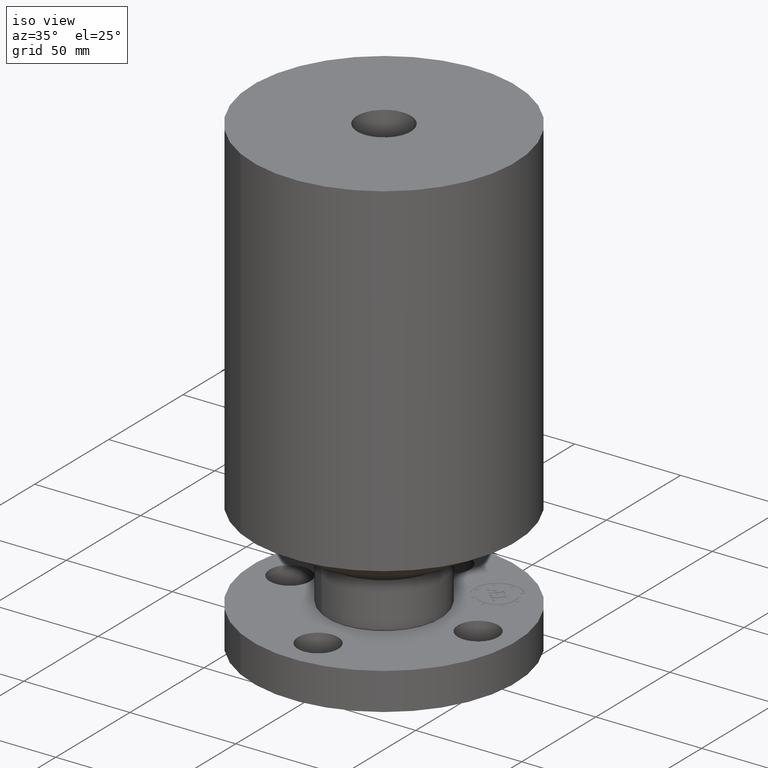
[diagram: clean part render]
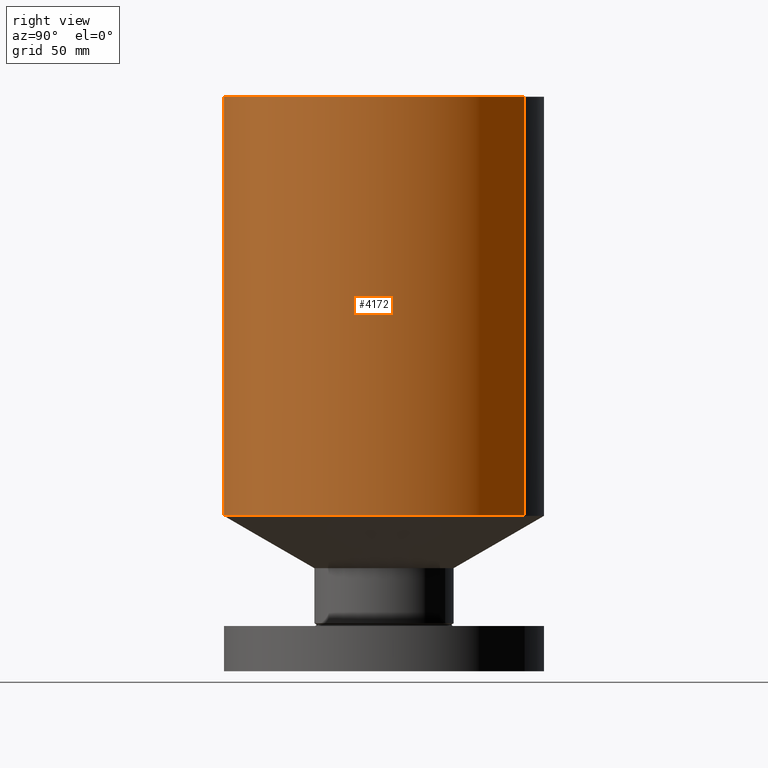
[diagram: tour spotlight — one face highlighted and labeled with its STEP entity id]
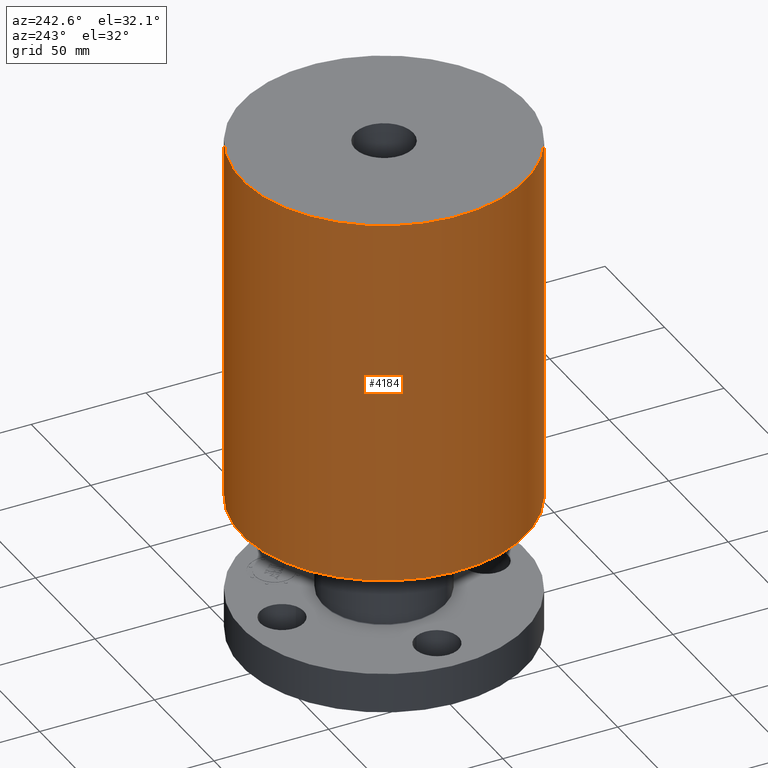
[diagram: tour spotlight — one face highlighted and labeled with its STEP entity id]
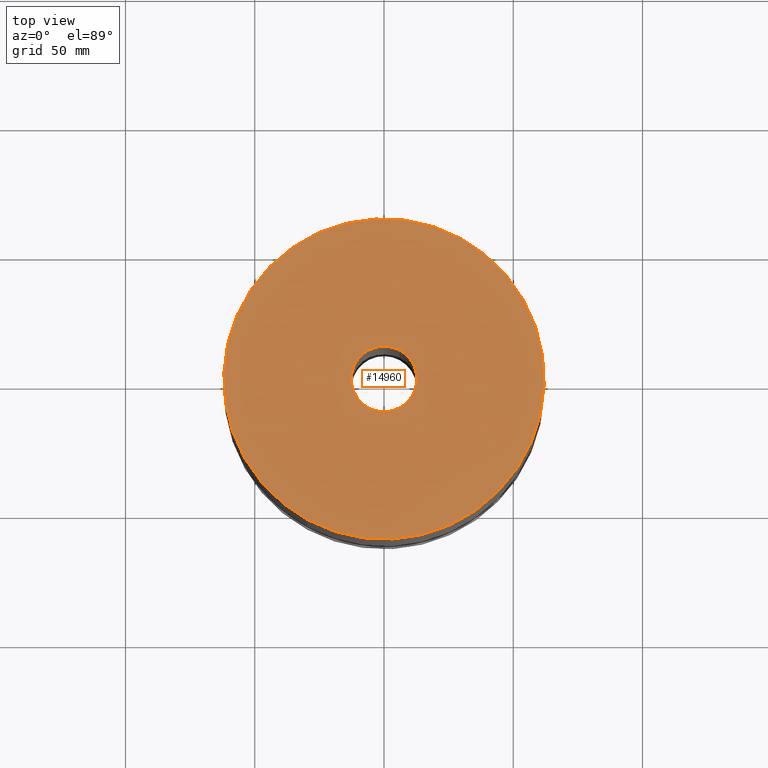
[diagram: tour spotlight — one face highlighted and labeled with its STEP entity id]
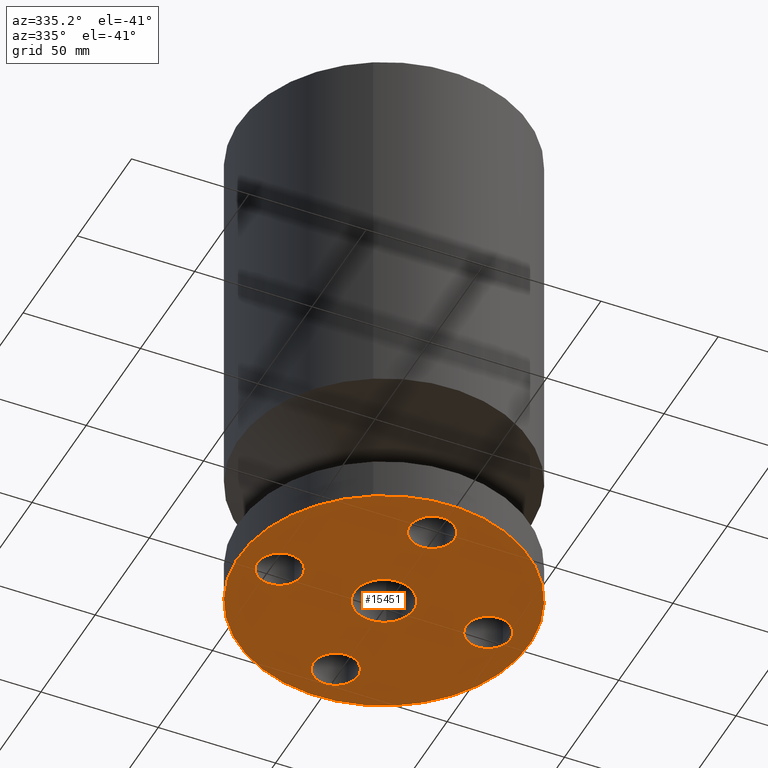
[diagram: tour spotlight — one face highlighted and labeled with its STEP entity id]
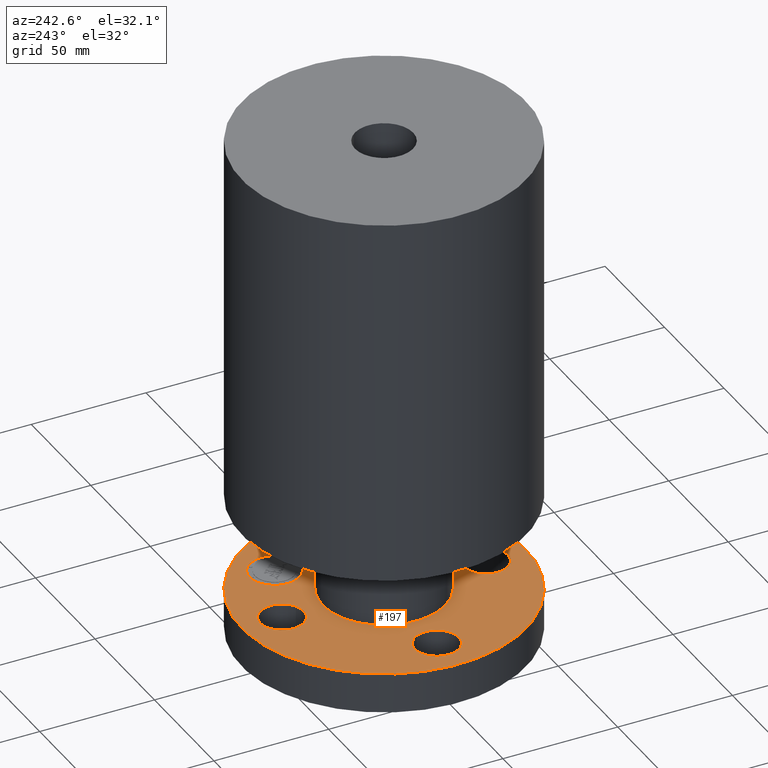
[diagram: tour spotlight — one face highlighted and labeled with its STEP entity id]
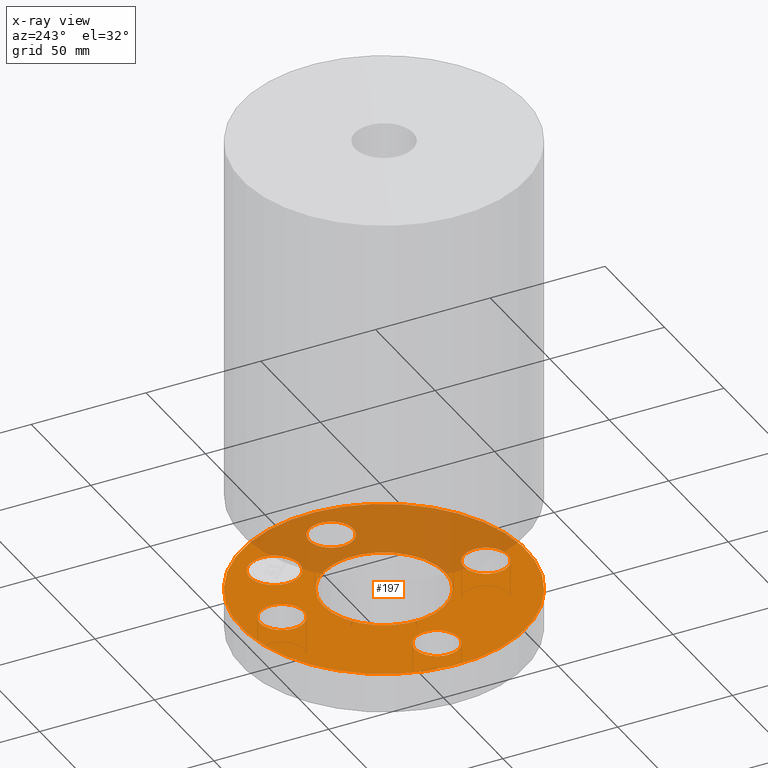
[diagram: x-ray of the same camera — body ghosted, this tour face saturated]
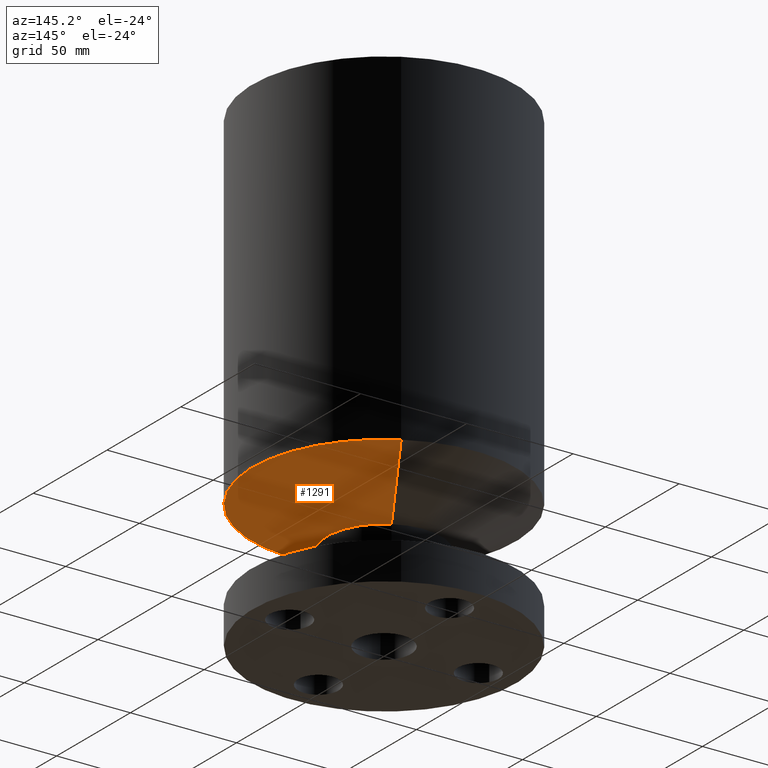
[diagram: tour spotlight — one face highlighted and labeled with its STEP entity id]
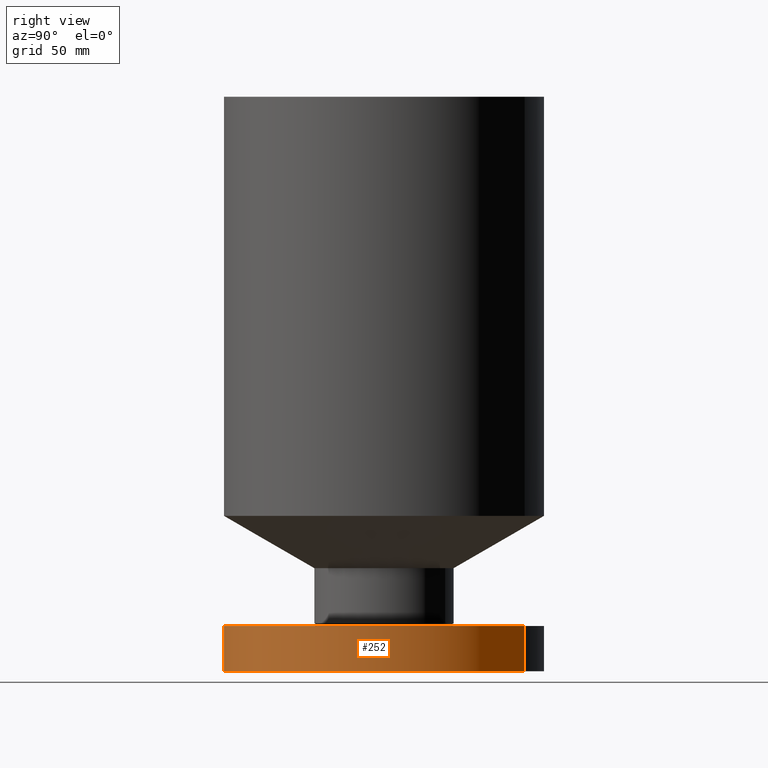
[diagram: tour spotlight — one face highlighted and labeled with its STEP entity id]
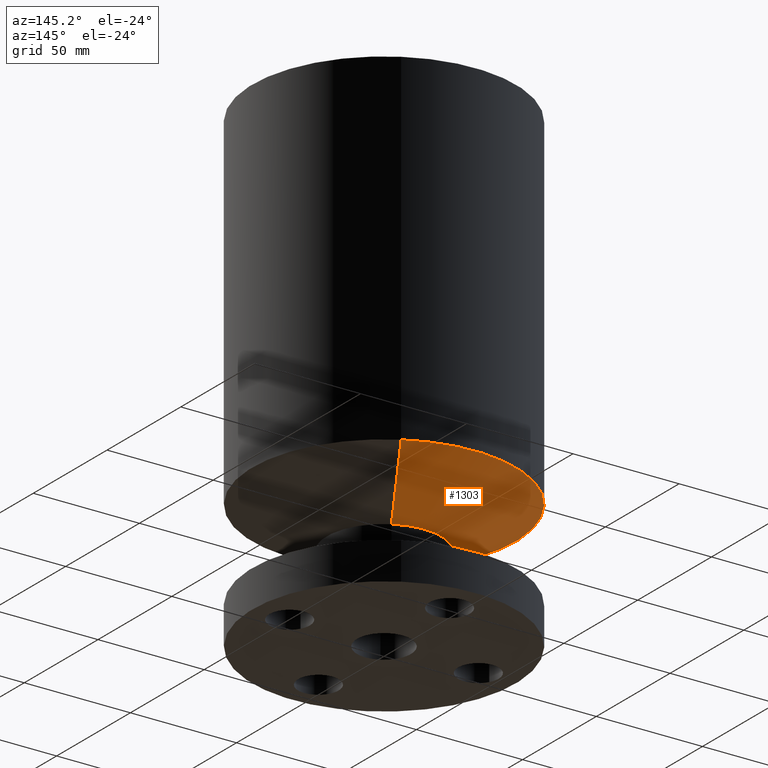
[diagram: tour spotlight — one face highlighted and labeled with its STEP entity id]
A machine part: a face-by-face anatomy tour. The part has 410 B-rep faces; the first image is the clean iso view, then the 8 largest visible faces are spotlighted one at a time (largest first), each with its STEP entity span.

Face 1 — right view, entity #4172. In plain terms, the highlighted cylindrical surface (partial cylindrical patch) has radius 61.976 mm, axis along (0, 0, -1).
Definition (entity closure, byte-faithful):
#213=AXIS2_PLACEMENT_3D('Cylinder Axis2P3D',#210,#211,#212) ;
#1275=AXIS2_PLACEMENT_3D('Circle Axis2P3D',#1273,#1274,$) ;
#4156=AXIS2_PLACEMENT_3D('Circle Axis2P3D',#4154,#4155,$) ;
#210=CARTESIAN_POINT('Axis2P3D Location',(0.,0.,4.25000000002)) ;
#1270=CARTESIAN_POINT('Vertex',(1.1697983142,2.14130145102,2.36674337149)) ;
#1273=CARTESIAN_POINT('Axis2P3D Location',(0.,0.,2.36674337149)) ;
#1277=CARTESIAN_POINT('Vertex',(-1.1697983142,-2.14130145102,2.36674337149)) ;
#4147=CARTESIAN_POINT('Line Origine',(1.1697983142,2.14130145102,5.55837168576)) ;
#4151=CARTESIAN_POINT('Vertex',(1.1697983142,2.14130145102,8.75000000004)) ;
#4154=CARTESIAN_POINT('Axis2P3D Location',(0.,0.,8.75000000003)) ;
#4158=CARTESIAN_POINT('Vertex',(-1.1697983142,-2.14130145102,8.75000000004)) ;
#4161=CARTESIAN_POINT('Line Origine',(-1.1697983142,-2.14130145102,5.55837168576)) ;
#211=DIRECTION('Axis2P3D Direction',(0.,0.,-0.0393700787402)) ;
#212=DIRECTION('Axis2P3D XDirection',(-0.0188750212049,-0.0345504945626,0.)) ;
#1274=DIRECTION('Axis2P3D Direction',(-0.,0.,0.0393700787402)) ;
#4148=DIRECTION('Vector Direction',(0.,0.,-0.0393700787402)) ;
#4155=DIRECTION('Axis2P3D Direction',(0.,0.,-0.0393700787402)) ;
#4162=DIRECTION('Vector Direction',(0.,0.,-0.0393700787402)) ;
#4149=VECTOR('Line Direction',#4148,0.0393700787402) ;
#4163=VECTOR('Line Direction',#4162,0.0393700787402) ;
#4167=ORIENTED_EDGE('',*,*,#1279,.F.) ;
#4168=ORIENTED_EDGE('',*,*,#4153,.T.) ;
#4169=ORIENTED_EDGE('',*,*,#4160,.T.) ;
#4170=ORIENTED_EDGE('',*,*,#4165,.F.) ;
#4172=ADVANCED_FACE('PartBody',(#4171),#214,.T.) ;
#1276=CIRCLE('generated circle',#1275,2.44000000001) ;
#4157=CIRCLE('generated circle',#4156,2.44000000001) ;
#214=CYLINDRICAL_SURFACE('generated cylinder',#213,2.44000000001) ;
#1279=EDGE_CURVE('',#1271,#1278,#1276,.F.) ;
#4153=EDGE_CURVE('',#1271,#4152,#4150,.F.) ;
#4160=EDGE_CURVE('',#4152,#4159,#4157,.T.) ;
#4165=EDGE_CURVE('',#1278,#4159,#4164,.F.) ;
#4166=EDGE_LOOP('',(#4167,#4168,#4169,#4170)) ;
#4171=FACE_OUTER_BOUND('',#4166,.T.) ;
#4150=LINE('Line',#4147,#4149) ;
#4164=LINE('Line',#4161,#4163) ;
#1271=VERTEX_POINT('',#1270) ;
#1278=VERTEX_POINT('',#1277) ;
#4152=VERTEX_POINT('',#4151) ;
#4159=VERTEX_POINT('',#4158) ;

Face 2 — auxiliary view, entity #4184. In plain terms, the highlighted cylindrical surface (partial cylindrical patch) has radius 61.976 mm, axis along (0, 0, -1).
Definition (entity closure, byte-faithful):
#213=AXIS2_PLACEMENT_3D('Cylinder Axis2P3D',#210,#211,#212) ;
#1294=AXIS2_PLACEMENT_3D('Circle Axis2P3D',#1292,#1293,$) ;
#4175=AXIS2_PLACEMENT_3D('Circle Axis2P3D',#4173,#4174,$) ;
#210=CARTESIAN_POINT('Axis2P3D Location',(0.,0.,4.25000000002)) ;
#1270=CARTESIAN_POINT('Vertex',(1.1697983142,2.14130145102,2.36674337149)) ;
#1277=CARTESIAN_POINT('Vertex',(-1.1697983142,-2.14130145102,2.36674337149)) ;
#1292=CARTESIAN_POINT('Axis2P3D Location',(0.,0.,2.36674337149)) ;
#4147=CARTESIAN_POINT('Line Origine',(1.1697983142,2.14130145102,5.55837168576)) ;
#4151=CARTESIAN_POINT('Vertex',(1.1697983142,2.14130145102,8.75000000004)) ;
#4158=CARTESIAN_POINT('Vertex',(-1.1697983142,-2.14130145102,8.75000000004)) ;
#4161=CARTESIAN_POINT('Line Origine',(-1.1697983142,-2.14130145102,5.55837168576)) ;
#4173=CARTESIAN_POINT('Axis2P3D Location',(0.,0.,8.75000000003)) ;
#211=DIRECTION('Axis2P3D Direction',(0.,0.,-0.0393700787402)) ;
#212=DIRECTION('Axis2P3D XDirection',(-0.0188750212049,-0.0345504945626,0.)) ;
#1293=DIRECTION('Axis2P3D Direction',(-0.,0.,0.0393700787402)) ;
#4148=DIRECTION('Vector Direction',(0.,0.,-0.0393700787402)) ;
#4162=DIRECTION('Vector Direction',(0.,0.,-0.0393700787402)) ;
#4174=DIRECTION('Axis2P3D Direction',(0.,0.,-0.0393700787402)) ;
#4149=VECTOR('Line Direction',#4148,0.0393700787402) ;
#4163=VECTOR('Line Direction',#4162,0.0393700787402) ;
#4179=ORIENTED_EDGE('',*,*,#1296,.F.) ;
#4180=ORIENTED_EDGE('',*,*,#4165,.T.) ;
#4181=ORIENTED_EDGE('',*,*,#4177,.T.) ;
#4182=ORIENTED_EDGE('',*,*,#4153,.F.) ;
#4184=ADVANCED_FACE('PartBody',(#4183),#214,.T.) ;
#1295=CIRCLE('generated circle',#1294,2.44000000001) ;
#4176=CIRCLE('generated circle',#4175,2.44000000001) ;
#214=CYLINDRICAL_SURFACE('generated cylinder',#213,2.44000000001) ;
#1296=EDGE_CURVE('',#1278,#1271,#1295,.F.) ;
#4153=EDGE_CURVE('',#1271,#4152,#4150,.F.) ;
#4165=EDGE_CURVE('',#1278,#4159,#4164,.F.) ;
#4177=EDGE_CURVE('',#4159,#4152,#4176,.T.) ;
#4178=EDGE_LOOP('',(#4179,#4180,#4181,#4182)) ;
#4183=FACE_OUTER_BOUND('',#4178,.T.) ;
#4150=LINE('Line',#4147,#4149) ;
#4164=LINE('Line',#4161,#4163) ;
#1271=VERTEX_POINT('',#1270) ;
#1278=VERTEX_POINT('',#1277) ;
#4152=VERTEX_POINT('',#4151) ;
#4159=VERTEX_POINT('',#4158) ;

Face 3 — top view, entity #14960. In plain terms, the highlighted planar face has unit normal (0, 0, -1).
Definition (entity closure, byte-faithful):
#4156=AXIS2_PLACEMENT_3D('Circle Axis2P3D',#4154,#4155,$) ;
#4175=AXIS2_PLACEMENT_3D('Circle Axis2P3D',#4173,#4174,$) ;
#14936=AXIS2_PLACEMENT_3D('Plane Axis2P3D',#14933,#14934,#14935) ;
#14944=AXIS2_PLACEMENT_3D('Circle Axis2P3D',#14942,#14943,$) ;
#14953=AXIS2_PLACEMENT_3D('Circle Axis2P3D',#14951,#14952,$) ;
#4151=CARTESIAN_POINT('Vertex',(1.1697983142,2.14130145102,8.75000000004)) ;
#4154=CARTESIAN_POINT('Axis2P3D Location',(0.,0.,8.75000000003)) ;
#4158=CARTESIAN_POINT('Vertex',(-1.1697983142,-2.14130145102,8.75000000004)) ;
#4173=CARTESIAN_POINT('Axis2P3D Location',(0.,0.,8.75000000003)) ;
#14933=CARTESIAN_POINT('Axis2P3D Location',(0.,2.44000000001,8.75000000003)) ;
#14942=CARTESIAN_POINT('Axis2P3D Location',(0.,0.,8.75000000003)) ;
#14946=CARTESIAN_POINT('Vertex',(-0.239712769303,-0.438791280947,8.75000000004)) ;
#14948=CARTESIAN_POINT('Vertex',(0.239712769303,0.438791280947,8.75000000004)) ;
#14951=CARTESIAN_POINT('Axis2P3D Location',(0.,0.,8.75000000003)) ;
#4155=DIRECTION('Axis2P3D Direction',(0.,0.,-0.0393700787402)) ;
#4174=DIRECTION('Axis2P3D Direction',(0.,0.,-0.0393700787402)) ;
#14934=DIRECTION('Axis2P3D Direction',(0.,0.,-0.0393700787402)) ;
#14935=DIRECTION('Axis2P3D XDirection',(0.0393700787402,0.,0.)) ;
#14943=DIRECTION('Axis2P3D Direction',(0.,0.,-0.0393700787402)) ;
#14952=DIRECTION('Axis2P3D Direction',(0.,0.,-0.0393700787402)) ;
#14939=ORIENTED_EDGE('',*,*,#4160,.F.) ;
#14940=ORIENTED_EDGE('',*,*,#4177,.F.) ;
#14957=ORIENTED_EDGE('',*,*,#14950,.T.) ;
#14958=ORIENTED_EDGE('',*,*,#14955,.T.) ;
#14959=FACE_BOUND('',#14956,.T.) ;
#14960=ADVANCED_FACE('PartBody',(#14941,#14959),#14937,.F.) ;
#4157=CIRCLE('generated circle',#4156,2.44000000001) ;
#4176=CIRCLE('generated circle',#4175,2.44000000001) ;
#14945=CIRCLE('generated circle',#14944,0.500000000002) ;
#14954=CIRCLE('generated circle',#14953,0.500000000002) ;
#4160=EDGE_CURVE('',#4152,#4159,#4157,.T.) ;
#4177=EDGE_CURVE('',#4159,#4152,#4176,.T.) ;
#14950=EDGE_CURVE('',#14947,#14949,#14945,.T.) ;
#14955=EDGE_CURVE('',#14949,#14947,#14954,.T.) ;
#14938=EDGE_LOOP('',(#14939,#14940)) ;
#14956=EDGE_LOOP('',(#14957,#14958)) ;
#14941=FACE_OUTER_BOUND('',#14938,.T.) ;
#14937=PLANE('',#14936) ;
#4152=VERTEX_POINT('',#4151) ;
#4159=VERTEX_POINT('',#4158) ;
#14947=VERTEX_POINT('',#14946) ;
#14949=VERTEX_POINT('',#14948) ;

Face 4 — auxiliary view, entity #15451. In plain terms, the highlighted planar face has unit normal (0, 0, 1).
Definition (entity closure, byte-faithful):
#51=AXIS2_PLACEMENT_3D('Circle Axis2P3D',#49,#50,$) ;
#200=AXIS2_PLACEMENT_3D('Circle Axis2P3D',#198,#199,$) ;
#217=AXIS2_PLACEMENT_3D('Circle Axis2P3D',#215,#216,$) ;
#243=AXIS2_PLACEMENT_3D('Circle Axis2P3D',#241,#242,$) ;
#310=AXIS2_PLACEMENT_3D('Circle Axis2P3D',#308,#309,$) ;
#329=AXIS2_PLACEMENT_3D('Circle Axis2P3D',#327,#328,$) ;
#353=AXIS2_PLACEMENT_3D('Circle Axis2P3D',#351,#352,$) ;
#372=AXIS2_PLACEMENT_3D('Circle Axis2P3D',#370,#371,$) ;
#396=AXIS2_PLACEMENT_3D('Circle Axis2P3D',#394,#395,$) ;
#415=AXIS2_PLACEMENT_3D('Circle Axis2P3D',#413,#414,$) ;
#15386=AXIS2_PLACEMENT_3D('Circle Axis2P3D',#15384,#15385,$) ;
#15412=AXIS2_PLACEMENT_3D('Circle Axis2P3D',#15410,#15411,$) ;
#15425=AXIS2_PLACEMENT_3D('Plane Axis2P3D',#15422,#15423,#15424) ;
#46=CARTESIAN_POINT('Vertex',(2.07909346072,0.179784576977,2.2401153548E-016)) ;
#49=CARTESIAN_POINT('Axis2P3D Location',(1.75000000001,0.,0.)) ;
#53=CARTESIAN_POINT('Vertex',(1.4209065393,-0.179784576977,2.2401153548E-016)) ;
#198=CARTESIAN_POINT('Axis2P3D Location',(1.75000000001,0.,0.)) ;
#215=CARTESIAN_POINT('Axis2P3D Location',(0.,0.,5.59482469102E-016)) ;
#219=CARTESIAN_POINT('Vertex',(-1.1697983142,-2.14130145102,0.)) ;
#221=CARTESIAN_POINT('Vertex',(1.1697983142,2.14130145102,0.)) ;
#241=CARTESIAN_POINT('Axis2P3D Location',(0.,0.,5.59482469102E-016)) ;
#305=CARTESIAN_POINT('Vertex',(0.179784576977,-2.07909346072,2.2401153548E-016)) ;
#308=CARTESIAN_POINT('Axis2P3D Location',(1.07156594926E-016,-1.75000000001,0.)) ;
#312=CARTESIAN_POINT('Vertex',(-0.179784576977,-1.4209065393,2.2401153548E-016)) ;
#327=CARTESIAN_POINT('Axis2P3D Location',(1.07156594926E-016,-1.75000000001,0.)) ;
#348=CARTESIAN_POINT('Vertex',(-2.07909346072,-0.179784576977,2.2401153548E-016)) ;
#351=CARTESIAN_POINT('Axis2P3D Location',(-1.75000000001,-2.14313189852E-016,0.)) ;
#355=CARTESIAN_POINT('Vertex',(-1.4209065393,0.179784576977,2.2401153548E-016)) ;
#370=CARTESIAN_POINT('Axis2P3D Location',(-1.75000000001,-2.14313189852E-016,0.)) ;
#391=CARTESIAN_POINT('Vertex',(-0.179784576977,2.07909346072,2.2401153548E-016)) ;
#394=CARTESIAN_POINT('Axis2P3D Location',(-3.21469784777E-016,1.75000000001,0.)) ;
#398=CARTESIAN_POINT('Vertex',(0.179784576977,1.4209065393,2.2401153548E-016)) ;
#413=CARTESIAN_POINT('Axis2P3D Location',(-3.21469784777E-016,1.75000000001,0.)) ;
#15384=CARTESIAN_POINT('Axis2P3D Location',(0.,0.,0.)) ;
#15388=CARTESIAN_POINT('Vertex',(-0.239712769303,-0.438791280947,0.)) ;
#15390=CARTESIAN_POINT('Vertex',(0.239712769303,0.438791280947,0.)) ;
#15410=CARTESIAN_POINT('Axis2P3D Location',(0.,0.,0.)) ;
#15422=CARTESIAN_POINT('Axis2P3D Location',(0.,0.,0.)) ;
#50=DIRECTION('Axis2P3D Direction',(0.,-0.,0.0393700787402)) ;
#199=DIRECTION('Axis2P3D Direction',(0.,-0.,0.0393700787402)) ;
#216=DIRECTION('Axis2P3D Direction',(0.,0.,-0.0393700787402)) ;
#242=DIRECTION('Axis2P3D Direction',(0.,0.,-0.0393700787402)) ;
#309=DIRECTION('Axis2P3D Direction',(-0.,0.,0.0393700787402)) ;
#328=DIRECTION('Axis2P3D Direction',(-0.,0.,0.0393700787402)) ;
#352=DIRECTION('Axis2P3D Direction',(0.,0.,0.0393700787402)) ;
#371=DIRECTION('Axis2P3D Direction',(0.,0.,0.0393700787402)) ;
#395=DIRECTION('Axis2P3D Direction',(0.,0.,0.0393700787402)) ;
#414=DIRECTION('Axis2P3D Direction',(0.,0.,0.0393700787402)) ;
#15385=DIRECTION('Axis2P3D Direction',(0.,0.,-0.0393700787402)) ;
#15411=DIRECTION('Axis2P3D Direction',(0.,0.,-0.0393700787402)) ;
#15423=DIRECTION('Axis2P3D Direction',(0.,0.,0.0393700787402)) ;
#15424=DIRECTION('Axis2P3D XDirection',(0.0393700787402,0.,0.)) ;
#15428=ORIENTED_EDGE('',*,*,#245,.T.) ;
#15429=ORIENTED_EDGE('',*,*,#223,.T.) ;
#15432=ORIENTED_EDGE('',*,*,#400,.F.) ;
#15433=ORIENTED_EDGE('',*,*,#417,.F.) ;
#15436=ORIENTED_EDGE('',*,*,#357,.F.) ;
#15437=ORIENTED_EDGE('',*,*,#374,.F.) ;
#15440=ORIENTED_EDGE('',*,*,#314,.F.) ;
#15441=ORIENTED_EDGE('',*,*,#331,.F.) ;
#15444=ORIENTED_EDGE('',*,*,#202,.F.) ;
#15445=ORIENTED_EDGE('',*,*,#55,.F.) ;
#15448=ORIENTED_EDGE('',*,*,#15414,.T.) ;
#15449=ORIENTED_EDGE('',*,*,#15392,.T.) ;
#15434=FACE_BOUND('',#15431,.T.) ;
#15438=FACE_BOUND('',#15435,.T.) ;
#15442=FACE_BOUND('',#15439,.T.) ;
#15446=FACE_BOUND('',#15443,.T.) ;
#15450=FACE_BOUND('',#15447,.T.) ;
#15451=ADVANCED_FACE('PartBody',(#15430,#15434,#15438,#15442,#15446,#15450),#15426,.F.) ;
#52=CIRCLE('generated circle',#51,0.375000000001) ;
#201=CIRCLE('generated circle',#200,0.375000000001) ;
#218=CIRCLE('generated circle',#217,2.44000000001) ;
#244=CIRCLE('generated circle',#243,2.44000000001) ;
#311=CIRCLE('generated circle',#310,0.375000000001) ;
#330=CIRCLE('generated circle',#329,0.375000000001) ;
#354=CIRCLE('generated circle',#353,0.375000000002) ;
#373=CIRCLE('generated circle',#372,0.375000000002) ;
#397=CIRCLE('generated circle',#396,0.375000000001) ;
#416=CIRCLE('generated circle',#415,0.375000000001) ;
#15387=CIRCLE('generated circle',#15386,0.500000000002) ;
#15413=CIRCLE('generated circle',#15412,0.500000000002) ;
#55=EDGE_CURVE('',#47,#54,#52,.F.) ;
#202=EDGE_CURVE('',#54,#47,#201,.F.) ;
#223=EDGE_CURVE('',#220,#222,#218,.T.) ;
#245=EDGE_CURVE('',#222,#220,#244,.T.) ;
#314=EDGE_CURVE('',#306,#313,#311,.F.) ;
#331=EDGE_CURVE('',#313,#306,#330,.F.) ;
#357=EDGE_CURVE('',#349,#356,#354,.F.) ;
#374=EDGE_CURVE('',#356,#349,#373,.F.) ;
#400=EDGE_CURVE('',#392,#399,#397,.F.) ;
#417=EDGE_CURVE('',#399,#392,#416,.F.) ;
#15392=EDGE_CURVE('',#15389,#15391,#15387,.F.) ;
#15414=EDGE_CURVE('',#15391,#15389,#15413,.F.) ;
#15427=EDGE_LOOP('',(#15428,#15429)) ;
#15431=EDGE_LOOP('',(#15432,#15433)) ;
#15435=EDGE_LOOP('',(#15436,#15437)) ;
#15439=EDGE_LOOP('',(#15440,#15441)) ;
#15443=EDGE_LOOP('',(#15444,#15445)) ;
#15447=EDGE_LOOP('',(#15448,#15449)) ;
#15430=FACE_OUTER_BOUND('',#15427,.T.) ;
#15426=PLANE('',#15425) ;
#47=VERTEX_POINT('',#46) ;
#54=VERTEX_POINT('',#53) ;
#220=VERTEX_POINT('',#219) ;
#222=VERTEX_POINT('',#221) ;
#306=VERTEX_POINT('',#305) ;
#313=VERTEX_POINT('',#312) ;
#349=VERTEX_POINT('',#348) ;
#356=VERTEX_POINT('',#355) ;
#392=VERTEX_POINT('',#391) ;
#399=VERTEX_POINT('',#398) ;
#15389=VERTEX_POINT('',#15388) ;
#15391=VERTEX_POINT('',#15390) ;

Face 5 — auxiliary view, entity #197. An x-ray twin of the same camera follows (body ghosted, this face saturated) — the face is partly hidden behind the body. In plain terms, the highlighted planar face has unit normal (0, 0, -1).
Definition (entity closure, byte-faithful):
#65=AXIS2_PLACEMENT_3D('Circle Axis2P3D',#63,#64,$) ;
#78=AXIS2_PLACEMENT_3D('Plane Axis2P3D',#75,#76,#77) ;
#82=AXIS2_PLACEMENT_3D('Circle Axis2P3D',#80,#81,$) ;
#91=AXIS2_PLACEMENT_3D('Circle Axis2P3D',#89,#90,$) ;
#100=AXIS2_PLACEMENT_3D('Circle Axis2P3D',#98,#99,$) ;
#109=AXIS2_PLACEMENT_3D('Circle Axis2P3D',#107,#108,$) ;
#118=AXIS2_PLACEMENT_3D('Circle Axis2P3D',#116,#117,$) ;
#127=AXIS2_PLACEMENT_3D('Circle Axis2P3D',#125,#126,$) ;
#136=AXIS2_PLACEMENT_3D('Circle Axis2P3D',#134,#135,$) ;
#145=AXIS2_PLACEMENT_3D('Circle Axis2P3D',#143,#144,$) ;
#154=AXIS2_PLACEMENT_3D('Circle Axis2P3D',#152,#153,$) ;
#163=AXIS2_PLACEMENT_3D('Circle Axis2P3D',#161,#162,$) ;
#172=AXIS2_PLACEMENT_3D('Circle Axis2P3D',#170,#171,$) ;
#181=AXIS2_PLACEMENT_3D('Circle Axis2P3D',#179,#180,$) ;
#190=AXIS2_PLACEMENT_3D('Circle Axis2P3D',#188,#189,$) ;
#44=CARTESIAN_POINT('Vertex',(2.07909346072,0.179784576977,0.690000000003)) ;
#60=CARTESIAN_POINT('Vertex',(1.4209065393,-0.179784576977,0.690000000003)) ;
#63=CARTESIAN_POINT('Axis2P3D Location',(1.75000000001,0.,0.690000000003)) ;
#75=CARTESIAN_POINT('Axis2P3D Location',(0.,2.44000000001,0.690000000003)) ;
#80=CARTESIAN_POINT('Axis2P3D Location',(0.,0.,0.690000000003)) ;
#84=CARTESIAN_POINT('Vertex',(1.1697983142,2.14130145102,0.690000000003)) ;
#86=CARTESIAN_POINT('Vertex',(-1.1697983142,-2.14130145102,0.690000000003)) ;
#89=CARTESIAN_POINT('Axis2P3D Location',(0.,0.,0.690000000003)) ;
#98=CARTESIAN_POINT('Axis2P3D Location',(1.75000000001,0.,0.690000000003)) ;
#107=CARTESIAN_POINT('Axis2P3D Location',(0.,0.,0.690000000003)) ;
#111=CARTESIAN_POINT('Vertex',(-0.500999687843,-0.917073777179,0.690000000003)) ;
#113=CARTESIAN_POINT('Vertex',(0.500999687843,0.917073777179,0.690000000003)) ;
#116=CARTESIAN_POINT('Axis2P3D Location',(0.,0.,0.690000000003)) ;
#125=CARTESIAN_POINT('Axis2P3D Location',(2.79741234551E-016,-1.75000000001,0.690000000003)) ;
#129=CARTESIAN_POINT('Vertex',(-0.179784576977,-1.4209065393,0.690000000003)) ;
#131=CARTESIAN_POINT('Vertex',(0.179784576977,-2.07909346072,0.690000000003)) ;
#134=CARTESIAN_POINT('Axis2P3D Location',(0.,-1.75000000001,0.690000000003)) ;
#143=CARTESIAN_POINT('Axis2P3D Location',(-1.75000000001,-2.79741234551E-016,0.690000000003)) ;
#147=CARTESIAN_POINT('Vertex',(-1.4209065393,0.179784576977,0.690000000003)) ;
#149=CARTESIAN_POINT('Vertex',(-2.07909346072,-0.179784576977,0.690000000003)) ;
#152=CARTESIAN_POINT('Axis2P3D Location',(-1.75000000001,-2.79741234551E-016,0.690000000003)) ;
#161=CARTESIAN_POINT('Axis2P3D Location',(-1.39870617276E-016,1.75000000001,0.690000000003)) ;
#165=CARTESIAN_POINT('Vertex',(0.179784576977,1.4209065393,0.690000000003)) ;
#167=CARTESIAN_POINT('Vertex',(-0.179784576977,2.07909346072,0.690000000003)) ;
#170=CARTESIAN_POINT('Axis2P3D Location',(-4.19611851827E-016,1.75000000001,0.690000000003)) ;
#179=CARTESIAN_POINT('Axis2P3D Location',(1.23743686708,1.23743686708,0.690000000003)) ;
#183=CARTESIAN_POINT('Vertex',(1.53795724608,0.936916488081,0.690000000003)) ;
#185=CARTESIAN_POINT('Vertex',(0.936916488081,1.53795724608,0.690000000003)) ;
#188=CARTESIAN_POINT('Axis2P3D Location',(1.23743686708,1.23743686708,0.690000000003)) ;
#64=DIRECTION('Axis2P3D Direction',(0.,-0.,0.0393700787402)) ;
#76=DIRECTION('Axis2P3D Direction',(0.,0.,-0.0393700787402)) ;
#77=DIRECTION('Axis2P3D XDirection',(0.0393700787402,0.,0.)) ;
#81=DIRECTION('Axis2P3D Direction',(0.,0.,-0.0393700787402)) ;
#90=DIRECTION('Axis2P3D Direction',(0.,0.,-0.0393700787402)) ;
#99=DIRECTION('Axis2P3D Direction',(0.,0.,-0.0393700787402)) ;
#108=DIRECTION('Axis2P3D Direction',(0.,0.,-0.0393700787402)) ;
#117=DIRECTION('Axis2P3D Direction',(0.,0.,-0.0393700787402)) ;
#126=DIRECTION('Axis2P3D Direction',(0.,0.,-0.0393700787402)) ;
#135=DIRECTION('Axis2P3D Direction',(0.,0.,-0.0393700787402)) ;
#144=DIRECTION('Axis2P3D Direction',(0.,0.,-0.0393700787402)) ;
#153=DIRECTION('Axis2P3D Direction',(0.,0.,-0.0393700787402)) ;
#162=DIRECTION('Axis2P3D Direction',(0.,0.,-0.0393700787402)) ;
#171=DIRECTION('Axis2P3D Direction',(0.,0.,-0.0393700787402)) ;
#180=DIRECTION('Axis2P3D Direction',(0.,0.,-0.0393700787402)) ;
#189=DIRECTION('Axis2P3D Direction',(0.,0.,-0.0393700787402)) ;
#95=ORIENTED_EDGE('',*,*,#88,.F.) ;
#96=ORIENTED_EDGE('',*,*,#93,.F.) ;
#104=ORIENTED_EDGE('',*,*,#67,.T.) ;
#105=ORIENTED_EDGE('',*,*,#102,.T.) ;
#122=ORIENTED_EDGE('',*,*,#115,.T.) ;
#123=ORIENTED_EDGE('',*,*,#120,.T.) ;
#140=ORIENTED_EDGE('',*,*,#133,.T.) ;
#141=ORIENTED_EDGE('',*,*,#138,.T.) ;
#158=ORIENTED_EDGE('',*,*,#151,.T.) ;
#159=ORIENTED_EDGE('',*,*,#156,.T.) ;
#176=ORIENTED_EDGE('',*,*,#169,.T.) ;
#177=ORIENTED_EDGE('',*,*,#174,.T.) ;
#194=ORIENTED_EDGE('',*,*,#187,.F.) ;
#195=ORIENTED_EDGE('',*,*,#192,.F.) ;
#106=FACE_BOUND('',#103,.T.) ;
#124=FACE_BOUND('',#121,.T.) ;
#142=FACE_BOUND('',#139,.T.) ;
#160=FACE_BOUND('',#157,.T.) ;
#178=FACE_BOUND('',#175,.T.) ;
#196=FACE_BOUND('',#193,.T.) ;
#197=ADVANCED_FACE('PartBody',(#97,#106,#124,#142,#160,#178,#196),#79,.F.) ;
#66=CIRCLE('generated circle',#65,0.375000000001) ;
#83=CIRCLE('generated circle',#82,2.44000000001) ;
#92=CIRCLE('generated circle',#91,2.44000000001) ;
#101=CIRCLE('generated circle',#100,0.375000000002) ;
#110=CIRCLE('generated circle',#109,1.045) ;
#119=CIRCLE('generated circle',#118,1.045) ;
#128=CIRCLE('generated circle',#127,0.375000000001) ;
#137=CIRCLE('generated circle',#136,0.375000000001) ;
#146=CIRCLE('generated circle',#145,0.375000000002) ;
#155=CIRCLE('generated circle',#154,0.375000000002) ;
#164=CIRCLE('generated circle',#163,0.375000000002) ;
#173=CIRCLE('generated circle',#172,0.375000000001) ;
#182=CIRCLE('generated circle',#181,0.424999995752) ;
#191=CIRCLE('generated circle',#190,0.424999995752) ;
#67=EDGE_CURVE('',#45,#61,#66,.F.) ;
#88=EDGE_CURVE('',#85,#87,#83,.T.) ;
#93=EDGE_CURVE('',#87,#85,#92,.T.) ;
#102=EDGE_CURVE('',#61,#45,#101,.T.) ;
#115=EDGE_CURVE('',#112,#114,#110,.T.) ;
#120=EDGE_CURVE('',#114,#112,#119,.T.) ;
#133=EDGE_CURVE('',#130,#132,#128,.T.) ;
#138=EDGE_CURVE('',#132,#130,#137,.T.) ;
#151=EDGE_CURVE('',#148,#150,#146,.T.) ;
#156=EDGE_CURVE('',#150,#148,#155,.T.) ;
#169=EDGE_CURVE('',#166,#168,#164,.T.) ;
#174=EDGE_CURVE('',#168,#166,#173,.T.) ;
#187=EDGE_CURVE('',#184,#186,#182,.F.) ;
#192=EDGE_CURVE('',#186,#184,#191,.F.) ;
#94=EDGE_LOOP('',(#95,#96)) ;
#103=EDGE_LOOP('',(#104,#105)) ;
#121=EDGE_LOOP('',(#122,#123)) ;
#139=EDGE_LOOP('',(#140,#141)) ;
#157=EDGE_LOOP('',(#158,#159)) ;
#175=EDGE_LOOP('',(#176,#177)) ;
#193=EDGE_LOOP('',(#194,#195)) ;
#97=FACE_OUTER_BOUND('',#94,.T.) ;
#79=PLANE('',#78) ;
#45=VERTEX_POINT('',#44) ;
#61=VERTEX_POINT('',#60) ;
#85=VERTEX_POINT('',#84) ;
#87=VERTEX_POINT('',#86) ;
#112=VERTEX_POINT('',#111) ;
#114=VERTEX_POINT('',#113) ;
#130=VERTEX_POINT('',#129) ;
#132=VERTEX_POINT('',#131) ;
#148=VERTEX_POINT('',#147) ;
#150=VERTEX_POINT('',#149) ;
#166=VERTEX_POINT('',#165) ;
#168=VERTEX_POINT('',#167) ;
#184=VERTEX_POINT('',#183) ;
#186=VERTEX_POINT('',#185) ;

Face 6 — auxiliary view, entity #1291. In plain terms, the highlighted conical surface has half-angle 60 deg.
Definition (entity closure, byte-faithful):
#719=AXIS2_PLACEMENT_3D('Circle Axis2P3D',#717,#718,$) ;
#1264=AXIS2_PLACEMENT_3D('Cone Axis2P3D',#1261,#1262,#1263) ;
#1275=AXIS2_PLACEMENT_3D('Circle Axis2P3D',#1273,#1274,$) ;
#714=CARTESIAN_POINT('Vertex',(0.508191070922,0.930237515608,1.57000000001)) ;
#717=CARTESIAN_POINT('Axis2P3D Location',(0.,0.,1.57000000001)) ;
#721=CARTESIAN_POINT('Vertex',(-0.508191070922,-0.930237515608,1.57000000001)) ;
#1261=CARTESIAN_POINT('Axis2P3D Location',(0.,0.,1.57000000001)) ;
#1266=CARTESIAN_POINT('Line Origine',(0.838994692561,1.53576948331,1.96837168575)) ;
#1270=CARTESIAN_POINT('Vertex',(1.1697983142,2.14130145102,2.36674337149)) ;
#1273=CARTESIAN_POINT('Axis2P3D Location',(0.,0.,2.36674337149)) ;
#1277=CARTESIAN_POINT('Vertex',(-1.1697983142,-2.14130145102,2.36674337149)) ;
#1280=CARTESIAN_POINT('Line Origine',(-0.838994692561,-1.53576948331,1.96837168575)) ;
#718=DIRECTION('Axis2P3D Direction',(0.,0.,-0.0393700787402)) ;
#1262=DIRECTION('Axis2P3D Direction',(-0.,-0.,0.0393700787402)) ;
#1263=DIRECTION('Axis2P3D XDirection',(0.0188750212049,0.0345504945626,0.)) ;
#1267=DIRECTION('Vector Direction',(0.0163462478604,0.0299216060045,0.0196850393701)) ;
#1274=DIRECTION('Axis2P3D Direction',(-0.,0.,0.0393700787402)) ;
#1281=DIRECTION('Vector Direction',(-0.0163462478604,-0.0299216060045,0.0196850393701)) ;
#1268=VECTOR('Line Direction',#1267,0.0393700787402) ;
#1282=VECTOR('Line Direction',#1281,0.0393700787402) ;
#1286=ORIENTED_EDGE('',*,*,#723,.F.) ;
#1287=ORIENTED_EDGE('',*,*,#1272,.T.) ;
#1288=ORIENTED_EDGE('',*,*,#1279,.T.) ;
#1289=ORIENTED_EDGE('',*,*,#1284,.F.) ;
#1291=ADVANCED_FACE('PartBody',(#1290),#1265,.T.) ;
#720=CIRCLE('generated circle',#719,1.06) ;
#1276=CIRCLE('generated circle',#1275,2.44000000001) ;
#1265=CONICAL_SURFACE('Cone',#1264,1.06,1.0471975512) ;
#723=EDGE_CURVE('',#715,#722,#720,.T.) ;
#1272=EDGE_CURVE('',#715,#1271,#1269,.T.) ;
#1279=EDGE_CURVE('',#1271,#1278,#1276,.F.) ;
#1284=EDGE_CURVE('',#722,#1278,#1283,.T.) ;
#1285=EDGE_LOOP('',(#1286,#1287,#1288,#1289)) ;
#1290=FACE_OUTER_BOUND('',#1285,.T.) ;
#1269=LINE('Line',#1266,#1268) ;
#1283=LINE('Line',#1280,#1282) ;
#715=VERTEX_POINT('',#714) ;
#722=VERTEX_POINT('',#721) ;
#1271=VERTEX_POINT('',#1270) ;
#1278=VERTEX_POINT('',#1277) ;

Face 7 — right view, entity #252. In plain terms, the highlighted cylindrical surface (partial cylindrical patch) has radius 61.976 mm, axis along (0, 0, -1).
Definition (entity closure, byte-faithful):
#82=AXIS2_PLACEMENT_3D('Circle Axis2P3D',#80,#81,$) ;
#213=AXIS2_PLACEMENT_3D('Cylinder Axis2P3D',#210,#211,#212) ;
#243=AXIS2_PLACEMENT_3D('Circle Axis2P3D',#241,#242,$) ;
#80=CARTESIAN_POINT('Axis2P3D Location',(0.,0.,0.690000000003)) ;
#84=CARTESIAN_POINT('Vertex',(1.1697983142,2.14130145102,0.690000000003)) ;
#86=CARTESIAN_POINT('Vertex',(-1.1697983142,-2.14130145102,0.690000000003)) ;
#210=CARTESIAN_POINT('Axis2P3D Location',(0.,0.,4.25000000002)) ;
#219=CARTESIAN_POINT('Vertex',(-1.1697983142,-2.14130145102,0.)) ;
#221=CARTESIAN_POINT('Vertex',(1.1697983142,2.14130145102,0.)) ;
#224=CARTESIAN_POINT('Line Origine',(-1.1697983142,-2.14130145102,5.55837168576)) ;
#229=CARTESIAN_POINT('Line Origine',(1.1697983142,2.14130145102,5.55837168576)) ;
#241=CARTESIAN_POINT('Axis2P3D Location',(0.,0.,5.59482469102E-016)) ;
#81=DIRECTION('Axis2P3D Direction',(0.,0.,-0.0393700787402)) ;
#211=DIRECTION('Axis2P3D Direction',(0.,0.,-0.0393700787402)) ;
#212=DIRECTION('Axis2P3D XDirection',(-0.0188750212049,-0.0345504945626,0.)) ;
#225=DIRECTION('Vector Direction',(0.,0.,-0.0393700787402)) ;
#230=DIRECTION('Vector Direction',(0.,0.,-0.0393700787402)) ;
#242=DIRECTION('Axis2P3D Direction',(0.,0.,-0.0393700787402)) ;
#226=VECTOR('Line Direction',#225,0.0393700787402) ;
#231=VECTOR('Line Direction',#230,0.0393700787402) ;
#247=ORIENTED_EDGE('',*,*,#245,.F.) ;
#248=ORIENTED_EDGE('',*,*,#233,.T.) ;
#249=ORIENTED_EDGE('',*,*,#88,.T.) ;
#250=ORIENTED_EDGE('',*,*,#228,.F.) ;
#252=ADVANCED_FACE('PartBody',(#251),#214,.T.) ;
#83=CIRCLE('generated circle',#82,2.44000000001) ;
#244=CIRCLE('generated circle',#243,2.44000000001) ;
#214=CYLINDRICAL_SURFACE('generated cylinder',#213,2.44000000001) ;
#88=EDGE_CURVE('',#85,#87,#83,.T.) ;
#228=EDGE_CURVE('',#220,#87,#227,.F.) ;
#233=EDGE_CURVE('',#222,#85,#232,.F.) ;
#245=EDGE_CURVE('',#222,#220,#244,.T.) ;
#246=EDGE_LOOP('',(#247,#248,#249,#250)) ;
#251=FACE_OUTER_BOUND('',#246,.T.) ;
#227=LINE('Line',#224,#226) ;
#232=LINE('Line',#229,#231) ;
#85=VERTEX_POINT('',#84) ;
#87=VERTEX_POINT('',#86) ;
#220=VERTEX_POINT('',#219) ;
#222=VERTEX_POINT('',#221) ;

Face 8 — auxiliary view, entity #1303. In plain terms, the highlighted conical surface has half-angle 60 deg.
Definition (entity closure, byte-faithful):
#738=AXIS2_PLACEMENT_3D('Circle Axis2P3D',#736,#737,$) ;
#1264=AXIS2_PLACEMENT_3D('Cone Axis2P3D',#1261,#1262,#1263) ;
#1294=AXIS2_PLACEMENT_3D('Circle Axis2P3D',#1292,#1293,$) ;
#714=CARTESIAN_POINT('Vertex',(0.508191070922,0.930237515608,1.57000000001)) ;
#721=CARTESIAN_POINT('Vertex',(-0.508191070922,-0.930237515608,1.57000000001)) ;
#736=CARTESIAN_POINT('Axis2P3D Location',(0.,0.,1.57000000001)) ;
#1261=CARTESIAN_POINT('Axis2P3D Location',(0.,0.,1.57000000001)) ;
#1266=CARTESIAN_POINT('Line Origine',(0.838994692561,1.53576948331,1.96837168575)) ;
#1270=CARTESIAN_POINT('Vertex',(1.1697983142,2.14130145102,2.36674337149)) ;
#1277=CARTESIAN_POINT('Vertex',(-1.1697983142,-2.14130145102,2.36674337149)) ;
#1280=CARTESIAN_POINT('Line Origine',(-0.838994692561,-1.53576948331,1.96837168575)) ;
#1292=CARTESIAN_POINT('Axis2P3D Location',(0.,0.,2.36674337149)) ;
#737=DIRECTION('Axis2P3D Direction',(0.,0.,-0.0393700787402)) ;
#1262=DIRECTION('Axis2P3D Direction',(-0.,-0.,0.0393700787402)) ;
#1263=DIRECTION('Axis2P3D XDirection',(0.0188750212049,0.0345504945626,0.)) ;
#1267=DIRECTION('Vector Direction',(0.0163462478604,0.0299216060045,0.0196850393701)) ;
#1281=DIRECTION('Vector Direction',(-0.0163462478604,-0.0299216060045,0.0196850393701)) ;
#1293=DIRECTION('Axis2P3D Direction',(-0.,0.,0.0393700787402)) ;
#1268=VECTOR('Line Direction',#1267,0.0393700787402) ;
#1282=VECTOR('Line Direction',#1281,0.0393700787402) ;
#1298=ORIENTED_EDGE('',*,*,#740,.F.) ;
#1299=ORIENTED_EDGE('',*,*,#1284,.T.) ;
#1300=ORIENTED_EDGE('',*,*,#1296,.T.) ;
#1301=ORIENTED_EDGE('',*,*,#1272,.F.) ;
#1303=ADVANCED_FACE('PartBody',(#1302),#1265,.T.) ;
#739=CIRCLE('generated circle',#738,1.06) ;
#1295=CIRCLE('generated circle',#1294,2.44000000001) ;
#1265=CONICAL_SURFACE('Cone',#1264,1.06,1.0471975512) ;
#740=EDGE_CURVE('',#722,#715,#739,.T.) ;
#1272=EDGE_CURVE('',#715,#1271,#1269,.T.) ;
#1284=EDGE_CURVE('',#722,#1278,#1283,.T.) ;
#1296=EDGE_CURVE('',#1278,#1271,#1295,.F.) ;
#1297=EDGE_LOOP('',(#1298,#1299,#1300,#1301)) ;
#1302=FACE_OUTER_BOUND('',#1297,.T.) ;
#1269=LINE('Line',#1266,#1268) ;
#1283=LINE('Line',#1280,#1282) ;
#715=VERTEX_POINT('',#714) ;
#722=VERTEX_POINT('',#721) ;
#1271=VERTEX_POINT('',#1270) ;
#1278=VERTEX_POINT('',#1277) ;